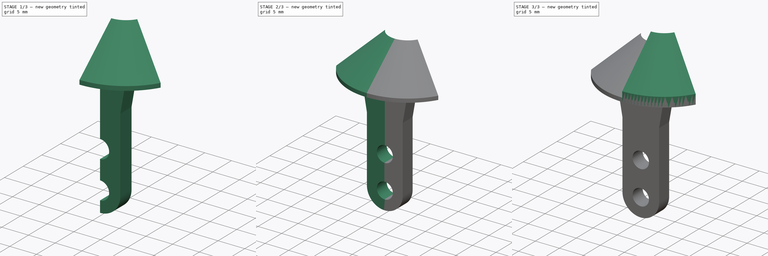
[diagram: build sequence overview — one tinted view per stage of 3, left to right]
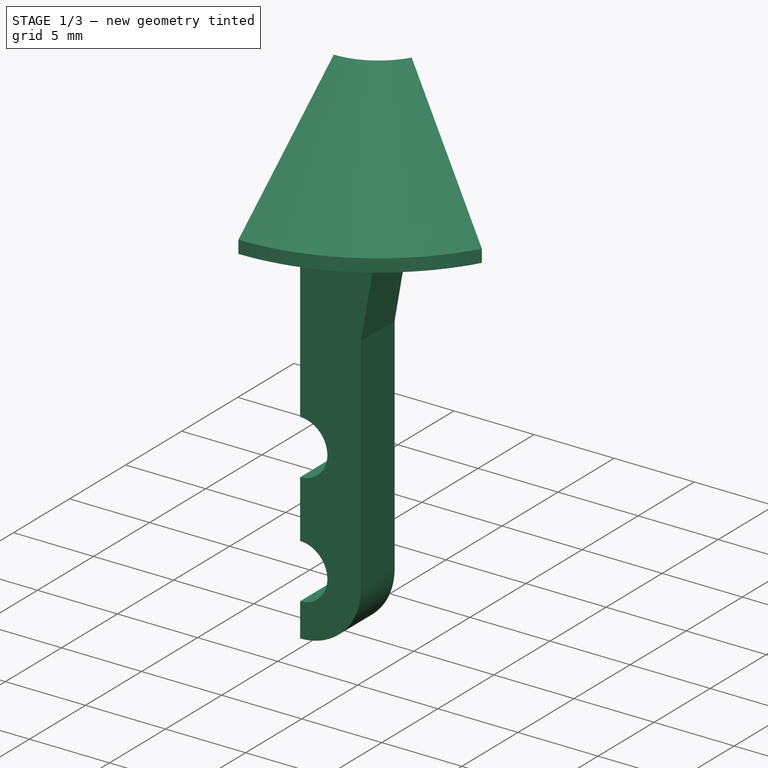
[diagram: stage 1 of 3 — iso view after this stage's code; geometry added in this stage tinted green]
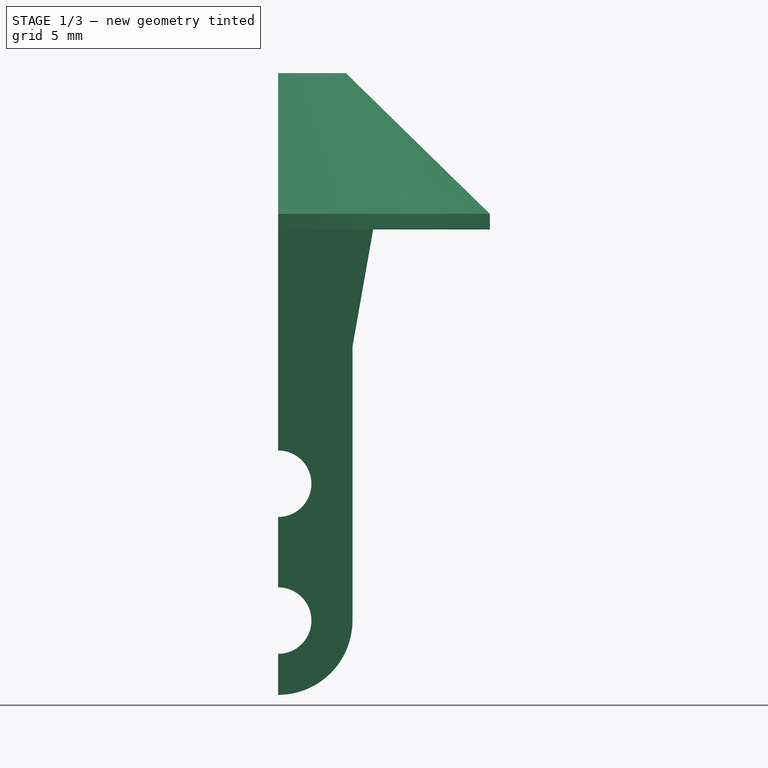
[diagram: stage 1 of 3 — front view after this stage's code; geometry added in this stage tinted green]
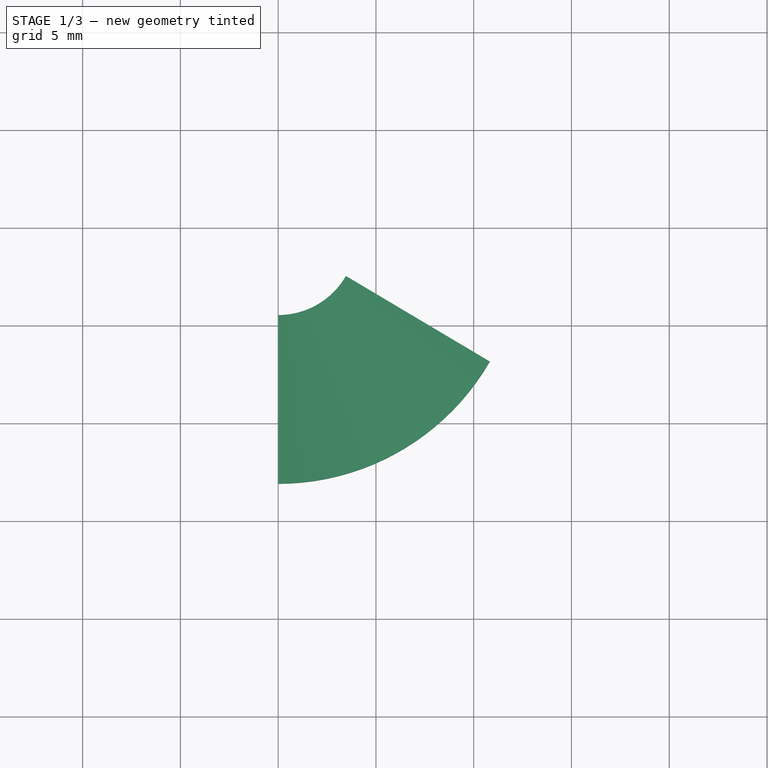
[diagram: stage 1 of 3 — top view after this stage's code; geometry added in this stage tinted green]
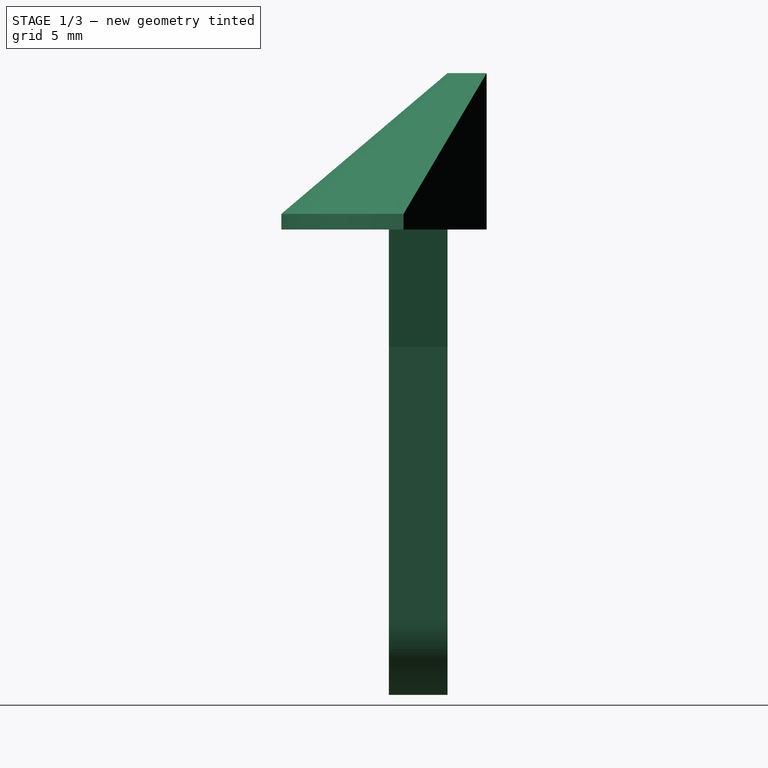
[diagram: stage 1 of 3 — right view after this stage's code; geometry added in this stage tinted green]
FCSTD DOCUMENT  (FreeCAD 0.19R24291 (Git))
Label: Зацеп
License: All rights reserved
LicenseURL: http://en.wikipedia.org/wiki/All_rights_reserved
objects: Sketcher::SketchObject×7, PartDesign::Pad×3, PartDesign::Line×2, PartDesign::Body×2, PartDesign::AdditivePipe×1, PartDesign::Revolution×1, PartDesign::Mirrored×1
note: 22 computed .brp shape members not serialized (recipe doc carries the construction recipe); baked Part::Feature solids carry a one-line shape summary decoded from their .brp

FEATURE [PartDesign::Body] Body
  Group = -> [Sketch,Pad,Sketch001,Pad001,Sketch002,Sketch003,DatumLine,Sketch004,AdditivePipe]
  Origin = -> Origin
  Tip = -> AdditivePipe
FEATURE [Sketcher::SketchObject] Sketch005
  FullyConstrained = true
  MapMode = 5
  Placement = pos=(0,0,0) rot=(1,0,0;1.5708rad)
  Support = -> [XZ_Plane001]
  sketch-geometry (9):
    g0: ArcOfCircle CenterX=0 CenterY=3.8 CenterZ=0 NormalX=0 NormalY=0 NormalZ=1 AngleXU=0 Radius=1.7 StartAngle=4.71239 EndAngle=7.85398
    g1: ArcOfCircle CenterX=0 CenterY=10.8 CenterZ=0 NormalX=0 NormalY=0 NormalZ=1 AngleXU=0 Radius=1.7 StartAngle=4.71239 EndAngle=7.85398
    g2: ArcOfCircle CenterX=0 CenterY=3.8 CenterZ=0 NormalX=0 NormalY=0 NormalZ=1 AngleXU=0 Radius=3.8 StartAngle=4.71239 EndAngle=6.28318
    g3: LineSegment StartX=3.8 StartY=3.79999 StartZ=0 EndX=3.8 EndY=17.8 EndZ=0
    g4: LineSegment StartX=3.8 StartY=17.8 StartZ=0 EndX=4.85796 EndY=23.8 EndZ=0
    g5: LineSegment StartX=4.85796 StartY=23.8 StartZ=0 EndX=0 EndY=23.8 EndZ=0
    g6: LineSegment StartX=0 StartY=23.8 StartZ=0 EndX=5e-16 EndY=12.5 EndZ=0
    g7: LineSegment StartX=-3e-16 StartY=9.1 StartZ=0 EndX=5e-16 EndY=5.5 EndZ=0
    g8: LineSegment StartX=-3e-16 StartY=2.1 StartZ=0 EndX=-7e-16 EndY=0 EndZ=0
  constraints (28):
    c: PointOnObject(g0,g-2)
    c: PointOnObject(g0,g-2)
    c: PointOnObject(g0,g-2)
    c: PointOnObject(g1,g-2)
    c: PointOnObject(g1,g-2)
    c: PointOnObject(g1,g-2)
    c: Equal(g1,g0)
    c: Diameter(g0) = 3.4
    c: Distance(g1,g0) = 7
    c: Coincident(g2,g0)
    c: Coincident(g2,g-1)
    c: Diameter(g2) = 7.6
    c: Coincident(g3,g2)
    c: Vertical(g3)
    c: Coincident(g4,g3)
    c: Coincident(g5,g4)
    c: PointOnObject(g5,g-2)
    c: Horizontal(g5)
    c: Coincident(g6,g5)
    c: Coincident(g6,g1)
    c: Distance(g1,g5) = 13
    c: Angle(g3,g4) = 2.96706
    c: Tangent(g2,g3)
    c: DistanceY(g3,g5) = 6
    c: Coincident(g7,g1)
    c: Coincident(g7,g0)
    c: Coincident(g8,g0)
    c: Coincident(g8,g2)
FEATURE [PartDesign::Pad] Pad002
  Direction = (1,1,1)
  Length = 3
  Length2 = 100
  Placement = pos=(0,0,0) rot=(1,0,0;1.5708rad)
  Profile = -> Sketch005
  Type = 0
FEATURE [Sketcher::SketchObject] Sketch006
  AttachmentOffset = pos=(0,23.8,0) rot=(0,0,1;0rad)
  FullyConstrained = true
  MapMode = 5
  Placement = pos=(-5.3e-15,5.3e-15,23.8) rot=(0.57735,0.57735,0.57735;2.0944rad)
  Support = -> [YZ_Plane001]
  sketch-geometry (5):
    g0: LineSegment StartX=0 StartY=0 StartZ=0 EndX=-8.5 EndY=0 EndZ=0
    g1: LineSegment StartX=-8.5 StartY=0 StartZ=0 EndX=-8.5 EndY=0.8 EndZ=0
    g2: LineSegment StartX=-8.5 StartY=0.8 StartZ=0 EndX=0 EndY=8 EndZ=0
    g3: LineSegment StartX=0 StartY=8 StartZ=0 EndX=0 EndY=0 EndZ=0
    g4: GeomPoint X=-3 Y=0 Z=0
  constraints (13):
    c: Coincident(g0,g-1)
    c: PointOnObject(g0,g-1)
    c: Coincident(g1,g0)
    c: Vertical(g1)
    c: Coincident(g2,g1)
    c: PointOnObject(g2,g-2)
    c: Coincident(g3,g2)
    c: Coincident(g3,g0)
    c: Distance(g3) = 8
    c: Distance(g1) = 0.8
    c: PointOnObject(g4,g0)
    c: Distance(g4,g0) = 3
    c: Distance(g4,g0) = 5.5
FEATURE [PartDesign::Line] DatumLine001
  AttacherType = Attacher::AttachEngineLine
  AttachmentOffset = pos=(0,12.5,0) rot=(0,0,1;0rad)
  Length = 20
  MapMode = 29
  Placement = pos=(-7.2e-15,4,23.8) rot=(0,0,1;0rad)
  ResizeMode = 0
  Support = -> [Sketch006]
FEATURE [PartDesign::Revolution] Revolution
  Angle = 60
  Axis = (-2e-16,0,1)
  Base = (-7.2e-15,4,23.8)
  BaseFeature = -> Pad002
  Placement = pos=(0,0,0) rot=(1,0,0;1.5708rad)
  Profile = -> Sketch006
  ReferenceAxis = -> DatumLine001
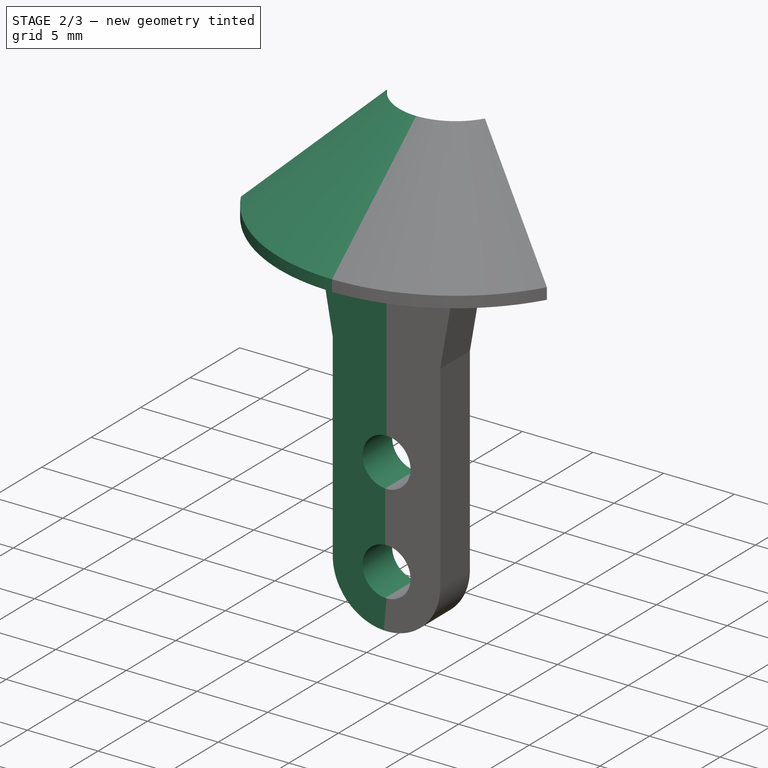
[diagram: stage 2 of 3 — iso view after this stage's code; geometry added in this stage tinted green]
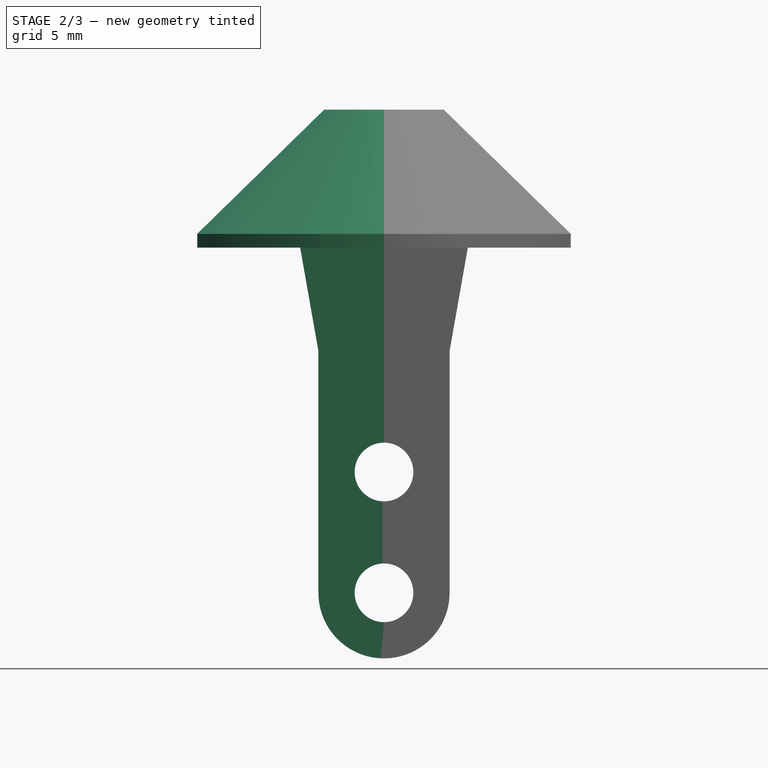
[diagram: stage 2 of 3 — front view after this stage's code; geometry added in this stage tinted green]
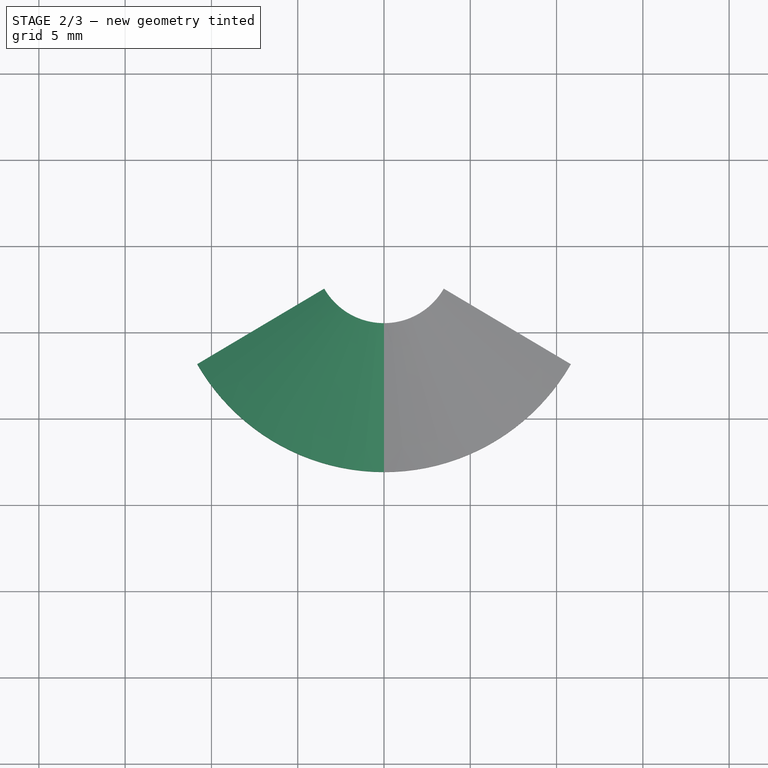
[diagram: stage 2 of 3 — top view after this stage's code; geometry added in this stage tinted green]
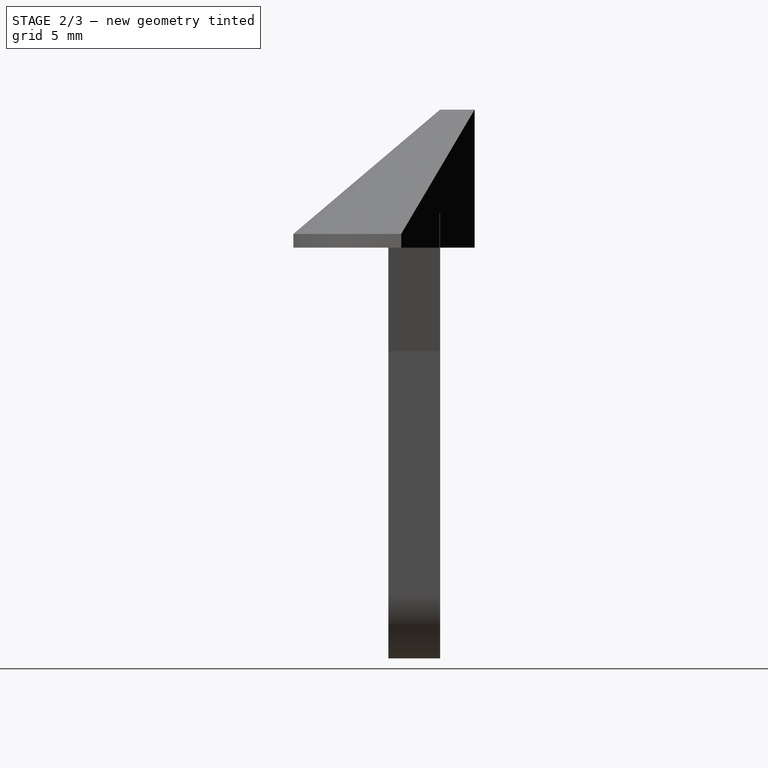
[diagram: stage 2 of 3 — right view after this stage's code; geometry added in this stage tinted green]
FEATURE [Sketcher::SketchObject] Sketch
  FullyConstrained = false
  MapMode = 5
  Placement = pos=(0,0,0) rot=(1,0,0;1.5708rad)
  Support = -> [XZ_Plane]
  sketch-geometry (12):
    g0: ArcOfCircle CenterX=0 CenterY=3.8 CenterZ=0 NormalX=0 NormalY=0 NormalZ=1 AngleXU=0 Radius=1.7 StartAngle=4.71239 EndAngle=7.85398
    g1: ArcOfCircle CenterX=0 CenterY=10.8 CenterZ=0 NormalX=0 NormalY=0 NormalZ=1 AngleXU=0 Radius=1.7 StartAngle=4.71239 EndAngle=7.85398
    g2: ArcOfCircle CenterX=0 CenterY=3.8 CenterZ=0 NormalX=0 NormalY=0 NormalZ=1 AngleXU=0 Radius=3.8 StartAngle=4.71239 EndAngle=6.28318
    g3: LineSegment StartX=0 StartY=25.8 StartZ=0 EndX=5e-16 EndY=12.5 EndZ=0
    g4: LineSegment StartX=-3e-16 StartY=9.1 StartZ=0 EndX=5e-16 EndY=5.5 EndZ=0
    g5: LineSegment StartX=-3e-16 StartY=2.1 StartZ=0 EndX=-7e-16 EndY=0 EndZ=0
    g6: LineSegment StartX=3.8 StartY=3.79998 StartZ=0 EndX=3.8 EndY=17.8914 EndZ=0
    g7: LineSegment StartX=7 StartY=23.8 StartZ=0 EndX=7 EndY=25.8 EndZ=0
    g8: LineSegment StartX=7 StartY=25.8 StartZ=0 EndX=0 EndY=25.8 EndZ=0
    g9: LineSegment StartX=7 StartY=23.8 StartZ=0 EndX=0 EndY=23.8 EndZ=0
    g10: LineSegment StartX=3.8 StartY=17.8914 StartZ=0 EndX=4.80432 EndY=23.8 EndZ=0
    g11: LineSegment StartX=4.80432 StartY=23.8 StartZ=0 EndX=7 EndY=23.8 EndZ=0
  constraints (35):
    c: PointOnObject(g0,g-2)
    c: PointOnObject(g0,g-2)
    c: PointOnObject(g0,g-2)
    c: PointOnObject(g1,g-2)
    c: PointOnObject(g1,g-2)
    c: PointOnObject(g1,g-2)
    c: Equal(g0,g1)
    c: Diameter(g0) = 3.4
    c: Distance(g0,g1) = 7
    c: Coincident(g2,g0)
    c: PointOnObject(g3,g-2)
    c: Coincident(g3,g1)
    c: Coincident(g4,g1)
    c: Coincident(g4,g0)
    c: Coincident(g5,g0)
    c: Coincident(g5,g2)
    c: Diameter(g2) = 7.6
    c: Coincident(g2,g-1)
    c: Coincident(g6,g2)
    c: Vertical(g6)
    c: Vertical(g7)
    c: Tangent(g2,g6)
    c: Coincident(g8,g7)
    c: Coincident(g8,g3)
    c: Horizontal(g8)
    c: PointOnObject(g9,g3)
    c: Horizontal(g9)
    c: Distance(g1,g9) = 13
    c: Distance(g8) = 7
    c: Distance(g7) = 2
    c: Coincident(g10,g6)
    c: PointOnObject(g10,g9)
    c: Coincident(g11,g10)
    c: Coincident(g11,g7)
    c: Horizontal(g11)
FEATURE [PartDesign::Pad] Pad
  Direction = (1,1,1)
  Length = 3
  Length2 = 0
  Placement = pos=(0,0,0) rot=(1,0,0;1.5708rad)
  Profile = -> Sketch
  Type = 4
FEATURE [PartDesign::Mirrored] Mirrored
  BaseFeature = -> Revolution
  MirrorPlane = -> Sketch005 [V_Axis]
  Originals = -> [Pad002,Revolution]
  Placement = pos=(0,0,0) rot=(1,0,0;1.5708rad)
FEATURE [PartDesign::Body] Body001
  Group = -> [Sketch005,Pad002,Sketch006,DatumLine001,Revolution,Mirrored]
  Origin = -> Origin001
  Tip = -> Mirrored
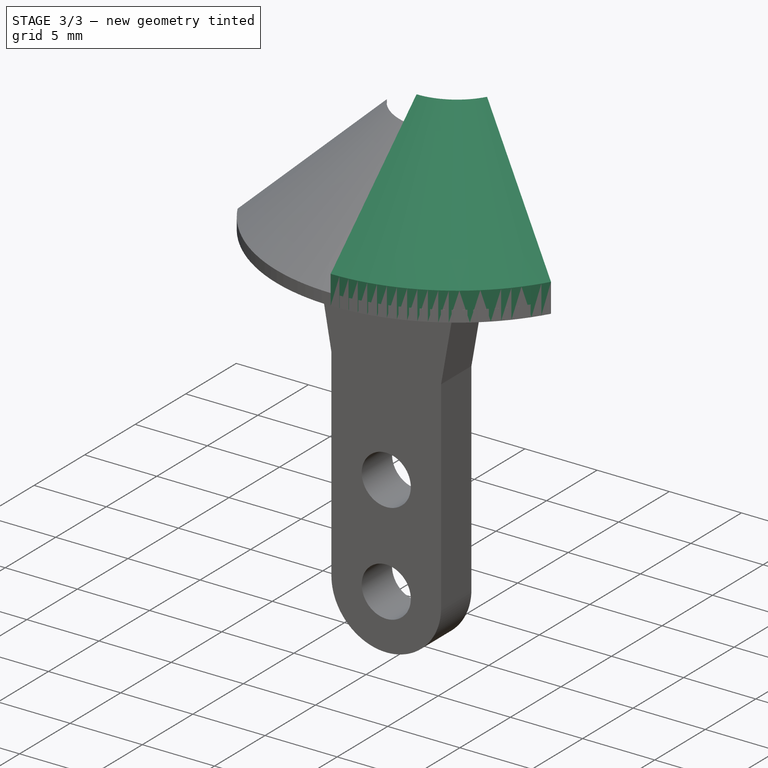
[diagram: stage 3 of 3 — iso view after this stage's code; geometry added in this stage tinted green]
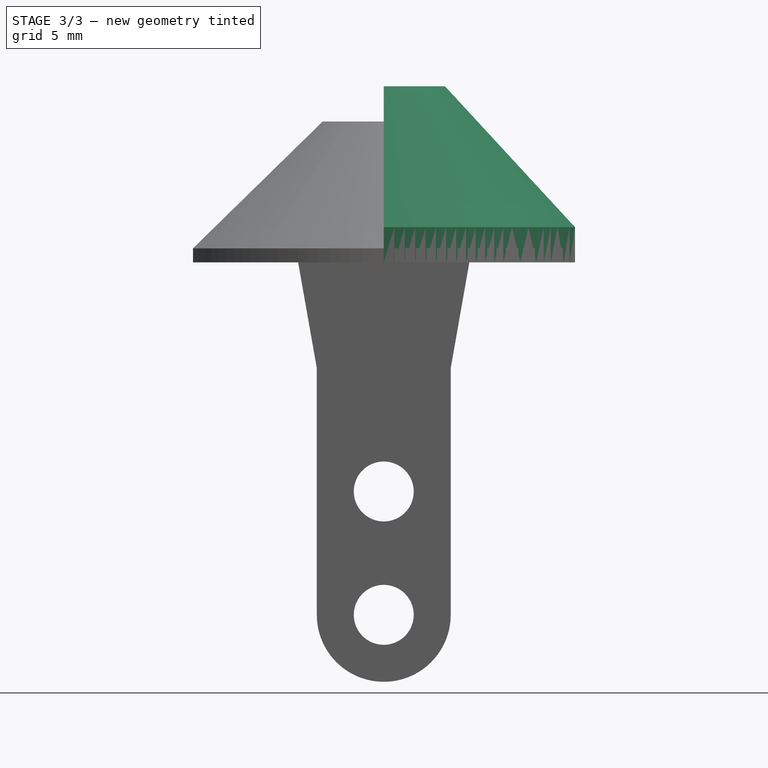
[diagram: stage 3 of 3 — front view after this stage's code; geometry added in this stage tinted green]
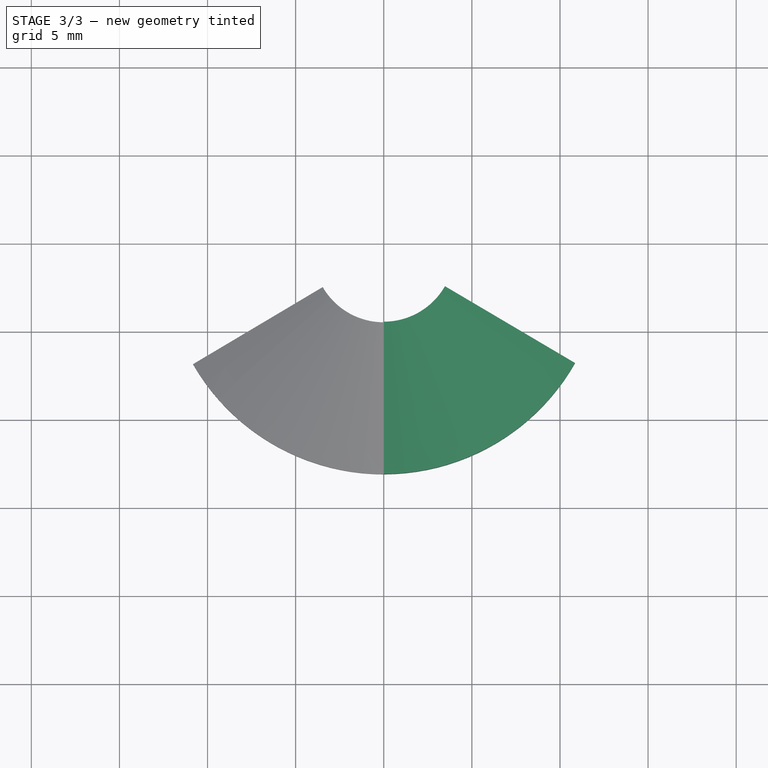
[diagram: stage 3 of 3 — top view after this stage's code; geometry added in this stage tinted green]
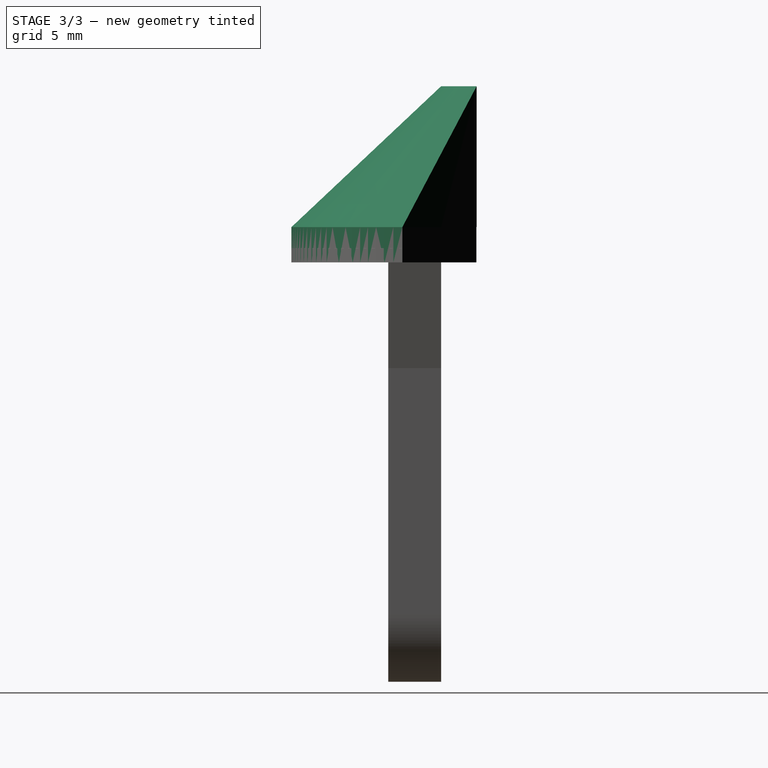
[diagram: stage 3 of 3 — right view after this stage's code; geometry added in this stage tinted green]
FEATURE [Sketcher::SketchObject] Sketch001
  ExternalGeometry = -> [Pad]
  FullyConstrained = true
  MapMode = 5
  Placement = pos=(0,2.29e-14,25.8) rot=(0,0,1;3.14159rad)
  Support = -> [Pad]
  sketch-geometry (5):
    g0: LineSegment StartX=-7 StartY=0 StartZ=0 EndX=-10.853 EndY=2.20174 EndZ=0
    g1: LineSegment StartX=0 StartY=0 StartZ=0 EndX=8e-16 EndY=8.5 EndZ=0
    g2: ArcOfCircle CenterX=0 CenterY=-4 CenterZ=0 NormalX=0 NormalY=0 NormalZ=1 AngleXU=0 Radius=12.5 StartAngle=1.5708 EndAngle=2.62245
    g3: LineSegment StartX=-7 StartY=0 StartZ=0 EndX=0 EndY=-3.69836e-11 EndZ=0
    g4: LineSegment StartX=0 StartY=-3.69836e-11 StartZ=0 EndX=0 EndY=0 EndZ=0
  constraints (13):
    c: PointOnObject(g1,g-2)
    c: PointOnObject(g2,g-2)
    c: Coincident(g2,g1)
    c: Distance(g1) = 8.5
    c: Diameter(g2) = 25
    c: Coincident(g0,g2)
    c: Perpendicular(g2,g0)
    c: Coincident(g0,g-3)
    c: Coincident(g0,g3)
    c: Coincident(g3,g-3)
    c: Coincident(g3,g4)
    c: Coincident(g4,g-1)
    c: Coincident(g1,g4)
FEATURE [PartDesign::Pad] Pad001
  BaseFeature = -> Pad
  Direction = (1,1,1)
  Length = 2
  Length2 = 100
  Placement = pos=(0,0,0) rot=(1,0,0;1.5708rad)
  Profile = -> Sketch001
  Reversed = true
  Type = 0
FEATURE [Sketcher::SketchObject] Sketch002
  ExternalGeometry = -> [Pad001]
  FullyConstrained = false
  MapMode = 5
  Placement = pos=(1.72308,3.01538,-4e-15) rot=(-0.936155,0.24861,-0.24861;1.63672rad)
  Support = -> [Pad001]
  sketch-geometry (3):
    g0: ArcOfCircle CenterX=5.82181 CenterY=-21.8619 CenterZ=0 NormalX=0 NormalY=0 NormalZ=1 AngleXU=0 Radius=4.82966 StartAngle=4.09503 EndAngle=6.04529
    g1: LineSegment StartX=10.5154 StartY=-23 StartZ=0 EndX=10.5154 EndY=-25.8 EndZ=0
    g2: LineSegment StartX=3.02598 StartY=-25.8 StartZ=0 EndX=10.5154 EndY=-25.8 EndZ=0
  constraints (7):
    c: Coincident(g1,g0)
    c: Coincident(g2,g0)
    c: Coincident(g2,g1)
    c: Coincident(g1,g-4)
    c: PointOnObject(g0,g-3)
    c: PointOnObject(g0,g-4)
    c: Distance(g0,g-4) = 0.8
FEATURE [Sketcher::SketchObject] Sketch003
  ExternalGeometry = -> [Pad001]
  FullyConstrained = true
  MapMode = 5
  Placement = pos=(0,0,0) rot=(0.707107,0,-0.707107;3.14159rad)
  Support = -> [Pad001]
  sketch-geometry (3):
    g0: LineSegment StartX=-25.8 StartY=8.5 StartZ=0 EndX=-33.8 EndY=0 EndZ=0
    g1: LineSegment StartX=-33.8 StartY=0 StartZ=0 EndX=-25.8 EndY=0 EndZ=0
    g2: LineSegment StartX=-25.8 StartY=0 StartZ=0 EndX=-25.8 EndY=8.5 EndZ=0
  constraints (8):
    c: Coincident(g0,g-3)
    c: PointOnObject(g0,g-1)
    c: Coincident(g1,g0)
    c: PointOnObject(g1,g-1)
    c: Coincident(g2,g1)
    c: Coincident(g2,g0)
    c: Vertical(g2)
    c: Distance(g1) = 8
FEATURE [PartDesign::Line] DatumLine
  AttacherType = Attacher::AttachEngineLine
  Length = 20
  MapMode = 19
  Placement = pos=(0,4,25.8) rot=(0,0,-1;1.5708rad)
  ResizeMode = 0
  Support = -> [Pad001]
FEATURE [Sketcher::SketchObject] Sketch004
  FullyConstrained = true
  MapMode = 5
  Support = -> [XY_Plane]
FEATURE [PartDesign::AdditivePipe] AdditivePipe
  AuxilleryCurvelinear = true
  AuxillerySpineTangent = false
  BaseFeature = -> Pad001
  Binormal = (0,0,0)
  Mode = 0
  Placement = pos=(0,0,0) rot=(1,0,0;1.5708rad)
  Profile = -> Sketch003
  Spine = -> Pad001 [Edge45]
  SpineTangent = false
  Transformation = 0
  Transition = 0
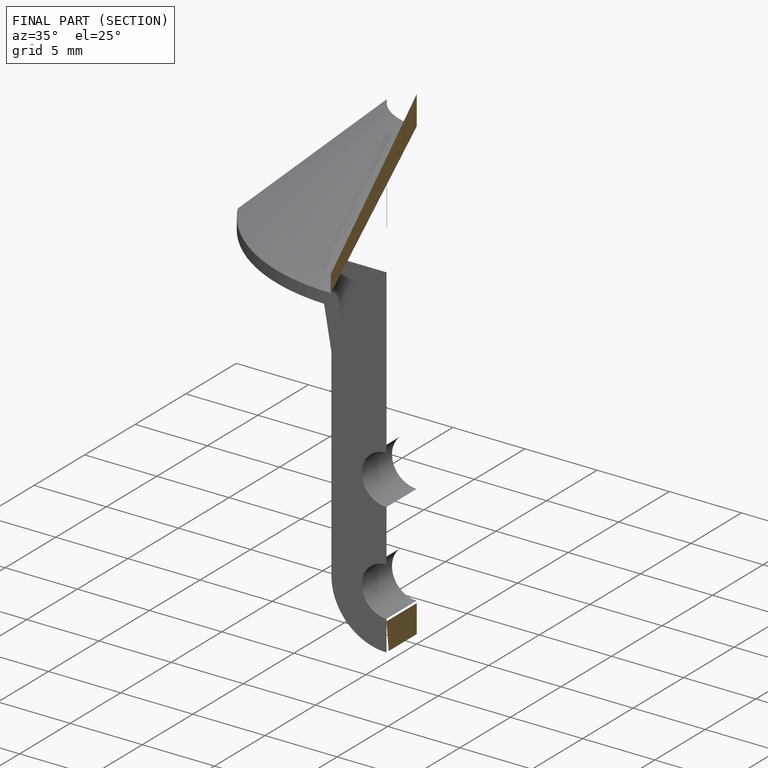
[diagram: finished part — half-section view (interior)]
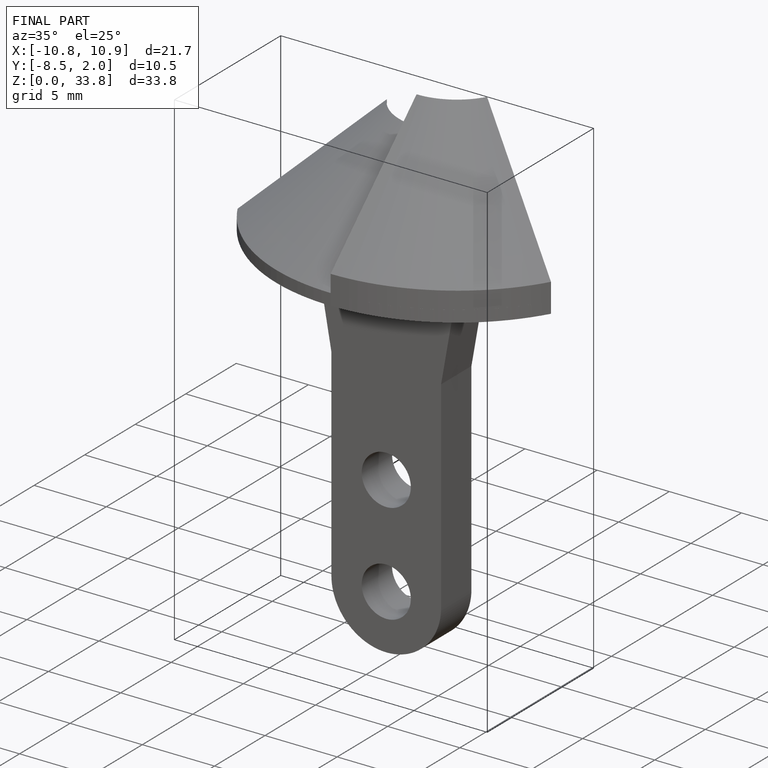
[diagram: finished part — iso view with bounding-box wireframe]
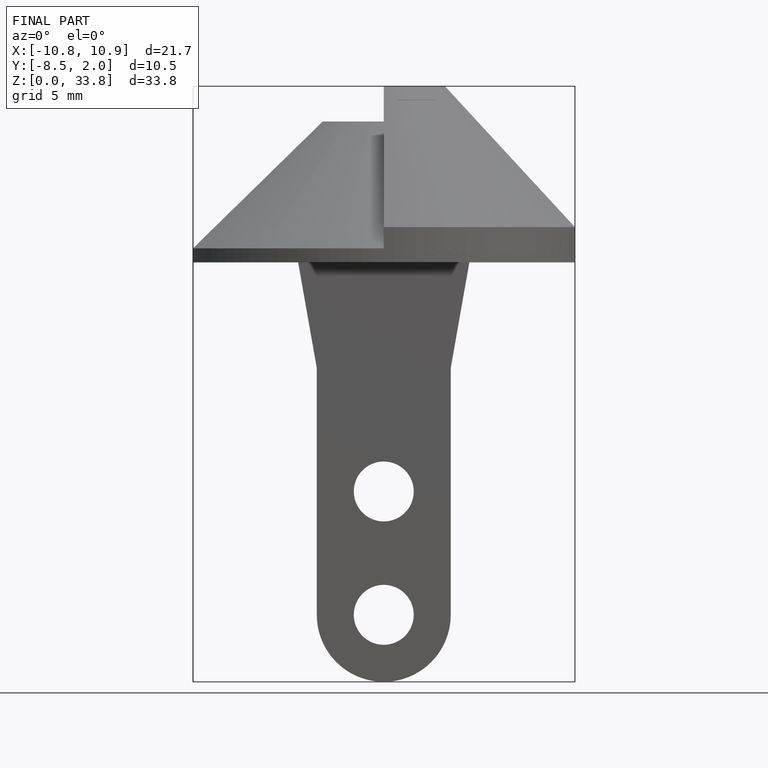
[diagram: finished part — front view with bounding-box wireframe]
